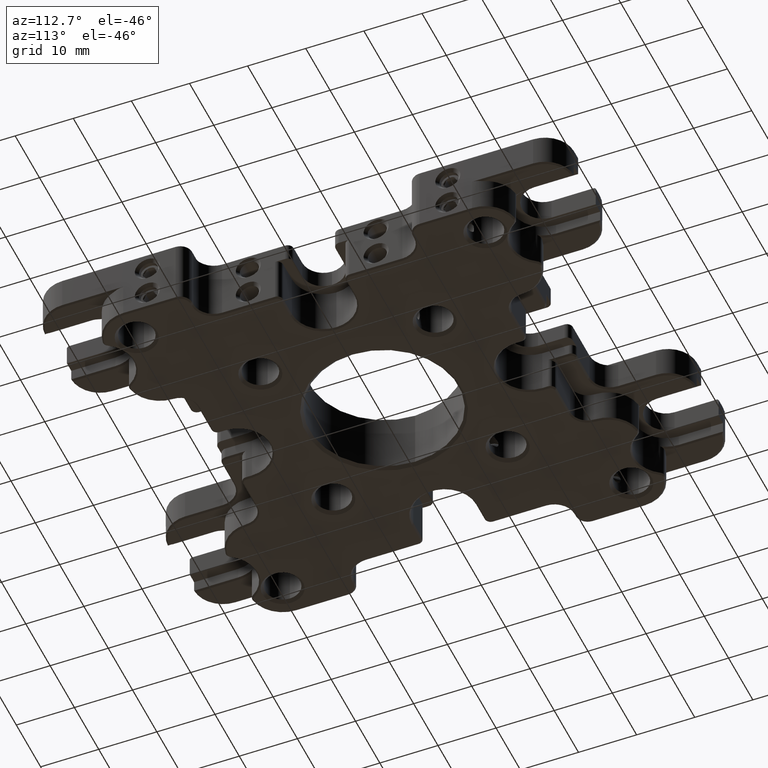
[diagram: clean part render]
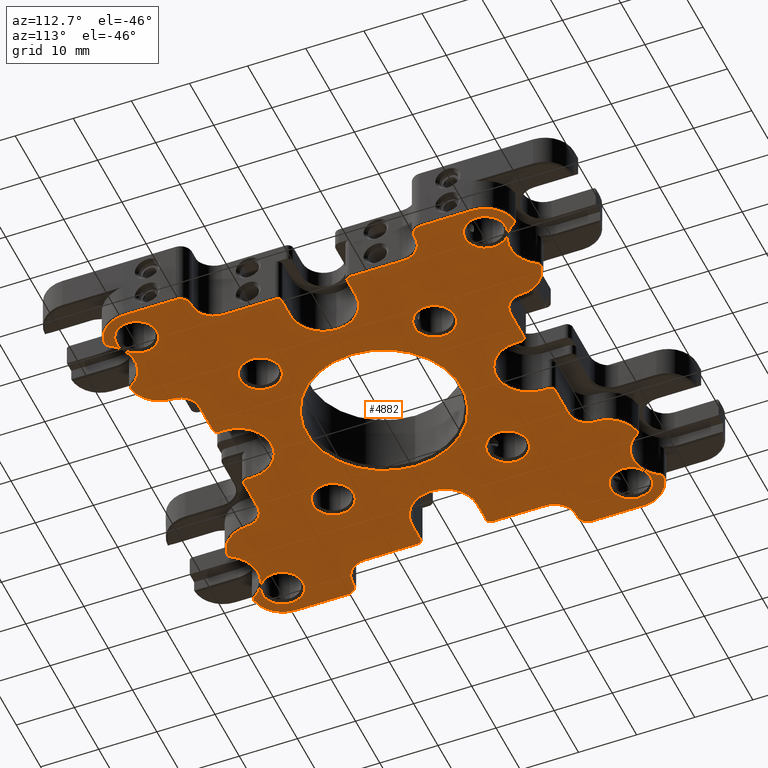
[diagram: same view with one face highlighted and labeled with its STEP entity id]
A machine part, auxiliary view. The second image highlights one B-rep face of the part: STEP entity #4882.
In plain terms, the highlighted planar face has unit normal (-0, -0, -1).
Its self-contained STEP definition (entity closure, byte-faithful):
#3 = VERTEX_POINT ( 'NONE', #20423 ) ;
#20 = VERTEX_POINT ( 'NONE', #4697 ) ;
#23 = AXIS2_PLACEMENT_3D ( 'NONE', #18444, #396, #20587 ) ;
#34 = AXIS2_PLACEMENT_3D ( 'NONE', #23027, #22929, #9438 ) ;
#136 = VERTEX_POINT ( 'NONE', #25530 ) ;
#164 = CIRCLE ( 'NONE', #18399, 3.249999999999996003 ) ;
#219 = EDGE_CURVE ( 'NONE', #1838, #3, #7677, .T. ) ;
#292 = CARTESIAN_POINT ( 'NONE',  ( -20.55000000000000071, 30.00000000000000711, -6.000000000000002665 ) ) ;
#361 = CARTESIAN_POINT ( 'NONE',  ( 5.650000000000093614, -24.99999999999998934, -5.999999999999997335 ) ) ;
#396 = DIRECTION ( 'NONE',  ( -5.551115123125782702E-17, -1.224646799147352468E-16, -1.000000000000000000 ) ) ;
#434 = DIRECTION ( 'NONE',  ( 5.551115123125782702E-17, 1.224646799147352468E-16, 1.000000000000000000 ) ) ;
#440 = VERTEX_POINT ( 'NONE', #10700 ) ;
#466 = AXIS2_PLACEMENT_3D ( 'NONE', #24731, #16068, #18148 ) ;
#515 = ORIENTED_EDGE ( 'NONE', *, *, #9703, .T. ) ;
#548 = DIRECTION ( 'NONE',  ( -1.000000000000000000, 7.225669484457239018E-33, 6.508304479540797116E-17 ) ) ;
#760 = ORIENTED_EDGE ( 'NONE', *, *, #19012, .T. ) ;
#769 = ORIENTED_EDGE ( 'NONE', *, *, #14913, .T. ) ;
#768 = DIRECTION ( 'NONE',  ( -1.000000000000000000, 0.000000000000000000, 0.000000000000000000 ) ) ;
#822 = EDGE_CURVE ( 'NONE', #18697, #23157, #16100, .T. ) ;
#942 = ORIENTED_EDGE ( 'NONE', *, *, #21608, .T. ) ;
#1018 = FACE_BOUND ( 'NONE', #5907, .T. ) ;
#1022 = VECTOR ( 'NONE', #17474, 1000.000000000000000 ) ;
#1025 = CIRCLE ( 'NONE', #12458, 3.500000000000031086 ) ;
#1058 = EDGE_CURVE ( 'NONE', #28078, #18950, #20307, .T. ) ;
#1156 = EDGE_CURVE ( 'NONE', #14185, #15510, #13974, .T. ) ;
#1162 = ORIENTED_EDGE ( 'NONE', *, *, #17979, .T. ) ;
#1168 = CARTESIAN_POINT ( 'NONE',  ( -15.00000000000000355, -15.00000000000000355, -5.999999999999997335 ) ) ;
#1207 = VECTOR ( 'NONE', #7180, 1000.000000000000000 ) ;
#1224 = ORIENTED_EDGE ( 'NONE', *, *, #11934, .T. ) ;
#1276 = EDGE_CURVE ( 'NONE', #9446, #14348, #3404, .T. ) ;
#1303 = LINE ( 'NONE', #20091, #12812 ) ;
#1309 = VERTEX_POINT ( 'NONE', #17637 ) ;
#1321 = CARTESIAN_POINT ( 'NONE',  ( -30.00000000000000711, -30.00000000000000711, -5.999999999999994671 ) ) ;
#1329 = DIRECTION ( 'NONE',  ( -1.000000000000000000, 0.000000000000000000, 0.000000000000000000 ) ) ;
#1334 = EDGE_CURVE ( 'NONE', #18144, #24481, #1659, .T. ) ;
#1342 = VECTOR ( 'NONE', #2926, 1000.000000000000000 ) ;
#1422 = EDGE_CURVE ( 'NONE', #10938, #14876, #26902, .T. ) ;
#1507 = ORIENTED_EDGE ( 'NONE', *, *, #16801, .T. ) ;
#1515 = ORIENTED_EDGE ( 'NONE', *, *, #9013, .T. ) ;
#1531 = VERTEX_POINT ( 'NONE', #24027 ) ;
#1530 = AXIS2_PLACEMENT_3D ( 'NONE', #16960, #10651, #26554 ) ;
#1563 = CARTESIAN_POINT ( 'NONE',  ( 30.68930778738513965, -34.49748315997405967, -5.999999999999997335 ) ) ;
#1601 = DIRECTION ( 'NONE',  ( -1.000000000000000000, 0.000000000000000000, 0.000000000000000000 ) ) ;
#1659 = CIRCLE ( 'NONE', #8578, 0.7500000000000006661 ) ;
#1696 = EDGE_CURVE ( 'NONE', #7974, #12941, #19743, .T. ) ;
#1726 = VERTEX_POINT ( 'NONE', #18580 ) ;
#1731 = CIRCLE ( 'NONE', #25037, 0.7500000000000006661 ) ;
#1788 = DIRECTION ( 'NONE',  ( -5.551115123125782702E-17, -1.224646799147352468E-16, -1.000000000000000000 ) ) ;
#1838 = VERTEX_POINT ( 'NONE', #17288 ) ;
#1853 = CARTESIAN_POINT ( 'NONE',  ( -33.05000000000003268, -19.25000000000000000, -5.999999999999995559 ) ) ;
#1870 = ORIENTED_EDGE ( 'NONE', *, *, #4716, .T. ) ;
#1929 = ORIENTED_EDGE ( 'NONE', *, *, #1334, .T. ) ;
#1951 = ORIENTED_EDGE ( 'NONE', *, *, #9628, .T. ) ;
#1980 = ORIENTED_EDGE ( 'NONE', *, *, #28832, .T. ) ;
#1991 = DIRECTION ( 'NONE',  ( -1.000000000000000000, 0.000000000000000000, 0.000000000000000000 ) ) ;
#2009 = CARTESIAN_POINT ( 'NONE',  ( 8.707643124360554731E-14, -25.00000000000000711, -5.999999999999996447 ) ) ;
#2011 = DIRECTION ( 'NONE',  ( 5.551115123125782702E-17, 1.224646799147352468E-16, 1.000000000000000000 ) ) ;
#2016 = ORIENTED_EDGE ( 'NONE', *, *, #24551, .T. ) ;
#2144 = AXIS2_PLACEMENT_3D ( 'NONE', #23367, #9866, #25561 ) ;
#2145 = CIRCLE ( 'NONE', #9078, 13.32700000000002305 ) ;
#2158 = VERTEX_POINT ( 'NONE', #18597 ) ;
#2274 = CARTESIAN_POINT ( 'NONE',  ( -30.00000000000000711, -30.00000000000000711, -5.999999999999994671 ) ) ;
#2294 = ORIENTED_EDGE ( 'NONE', *, *, #17757, .T. ) ;
#2315 = ORIENTED_EDGE ( 'NONE', *, *, #14815, .T. ) ;
#2318 = ORIENTED_EDGE ( 'NONE', *, *, #219, .T. ) ;
#2352 = DIRECTION ( 'NONE',  ( -5.551115123125782702E-17, -1.224646799147352468E-16, -1.000000000000000000 ) ) ;
#2393 = CIRCLE ( 'NONE', #19068, 5.650000000000002132 ) ;
#2446 = VERTEX_POINT ( 'NONE', #5406 ) ;
#2459 = EDGE_CURVE ( 'NONE', #19408, #14001, #7168, .T. ) ;
#2489 = LINE ( 'NONE', #26253, #22849 ) ;
#2519 = DIRECTION ( 'NONE',  ( -1.000000000000000000, 0.000000000000000000, 0.000000000000000000 ) ) ;
#2595 = CARTESIAN_POINT ( 'NONE',  ( 25.00000000000000711, -5.650000000000003908, -6.000000000000000888 ) ) ;
#2609 = DIRECTION ( 'NONE',  ( 5.551115123125782702E-17, 1.224646799147352468E-16, 1.000000000000000000 ) ) ;
#2612 = CARTESIAN_POINT ( 'NONE',  ( -30.80292995014093194, -35.23882653799176268, -5.999999999999993783 ) ) ;
#2626 = ORIENTED_EDGE ( 'NONE', *, *, #14204, .T. ) ;
#2681 = CARTESIAN_POINT ( 'NONE',  ( 26.49999999999997513, 30.00000000000000711, -6.000000000000005329 ) ) ;
#2709 = EDGE_CURVE ( 'NONE', #7566, #4701, #1303, .T. ) ;
#2818 = AXIS2_PLACEMENT_3D ( 'NONE', #10362, #3836, #14629 ) ;
#2877 = CARTESIAN_POINT ( 'NONE',  ( 19.86069221261486462, -34.49748315997406678, -5.999999999999996447 ) ) ;
#2885 = AXIS2_PLACEMENT_3D ( 'NONE', #6793, #2352, #4481 ) ;
#2893 = ORIENTED_EDGE ( 'NONE', *, *, #21449, .T. ) ;
#2905 = VERTEX_POINT ( 'NONE', #20206 ) ;
#2926 = DIRECTION ( 'NONE',  ( -4.149196400824861668E-15, 1.000000000000000000, -1.224646799147350742E-16 ) ) ;
#2951 = CIRCLE ( 'NONE', #23921, 3.500000000000031086 ) ;
#2975 = AXIS2_PLACEMENT_3D ( 'NONE', #10987, #4285, #8946 ) ;
#2976 = DIRECTION ( 'NONE',  ( -1.000000000000000000, 0.000000000000000000, 0.000000000000000000 ) ) ;
#3035 = EDGE_CURVE ( 'NONE', #26355, #17253, #19137, .T. ) ;
#3036 = CIRCLE ( 'NONE', #20481, 1.750000000000001554 ) ;
#3132 = DIRECTION ( 'NONE',  ( -1.000000000000000000, 0.000000000000000000, 0.000000000000000000 ) ) ;
#3205 = ORIENTED_EDGE ( 'NONE', *, *, #5536, .T. ) ;
#3237 = ORIENTED_EDGE ( 'NONE', *, *, #14705, .T. ) ;
#3314 = DIRECTION ( 'NONE',  ( -5.551115123125782702E-17, -1.224646799147352468E-16, -1.000000000000000000 ) ) ;
#3404 = CIRCLE ( 'NONE', #27198, 13.32700000000002305 ) ;
#3536 = EDGE_CURVE ( 'NONE', #21972, #9353, #22210, .T. ) ;
#3555 = CARTESIAN_POINT ( 'NONE',  ( 33.50000000000003553, -30.00000000000000711, -5.999999999999998224 ) ) ;
#3719 = CARTESIAN_POINT ( 'NONE',  ( -28.55000000000002558, -5.650000000000003908, -5.999999999999997335 ) ) ;
#3765 = CARTESIAN_POINT ( 'NONE',  ( 25.00000000000000711, -8.572527594031471218E-16, -6.000000000000001776 ) ) ;
#3779 = FACE_BOUND ( 'NONE', #12794, .T. ) ;
#3836 = DIRECTION ( 'NONE',  ( 5.551115123125782702E-17, 1.224646799147352468E-16, 1.000000000000000000 ) ) ;
#3845 = AXIS2_PLACEMENT_3D ( 'NONE', #19868, #17339, #21923 ) ;
#3846 = CARTESIAN_POINT ( 'NONE',  ( -33.05000000000003268, 15.50000000000000533, -6.000000000000000000 ) ) ;
#3856 = EDGE_CURVE ( 'NONE', #14326, #10458, #27851, .T. ) ;
#3917 = CIRCLE ( 'NONE', #12172, 3.500000000000031086 ) ;
#3918 = EDGE_CURVE ( 'NONE', #16077, #6807, #28766, .T. ) ;
#3945 = DIRECTION ( 'NONE',  ( -1.000000000000000000, 0.000000000000000000, 0.000000000000000000 ) ) ;
#4045 = AXIS2_PLACEMENT_3D ( 'NONE', #11088, #9239, #13605 ) ;
#4161 = CARTESIAN_POINT ( 'NONE',  ( -3.330669073875469621E-16, -7.347880794884114806E-16, -6.000000000000000000 ) ) ;
#4237 = CARTESIAN_POINT ( 'NONE',  ( -30.05481859355094088, -34.89738747716459955, -5.999999999999993783 ) ) ;
#4248 = CARTESIAN_POINT ( 'NONE',  ( 6.399999999999917755, 26.75000000000001066, -6.000000000000003553 ) ) ;
#4249 = DIRECTION ( 'NONE',  ( -1.000000000000000000, 0.000000000000000000, 0.000000000000000000 ) ) ;
#4285 = DIRECTION ( 'NONE',  ( -5.551115123125782702E-17, -1.224646799147352468E-16, -1.000000000000000000 ) ) ;
#4296 = AXIS2_PLACEMENT_3D ( 'NONE', #9280, #13856, #16224 ) ;
#4302 = VERTEX_POINT ( 'NONE', #22342 ) ;
#4326 = CIRCLE ( 'NONE', #11745, 3.750000000000027534 ) ;
#4365 = DIRECTION ( 'NONE',  ( -1.000000000000000000, 0.000000000000000000, 0.000000000000000000 ) ) ;
#4399 = DIRECTION ( 'NONE',  ( -1.785374792092216501E-32, 1.000000000000000000, -1.224646799147352961E-16 ) ) ;
#4481 = DIRECTION ( 'NONE',  ( -1.000000000000000000, 0.000000000000000000, 0.000000000000000000 ) ) ;
#4491 = CIRCLE ( 'NONE', #21507, 5.300000000000002487 ) ;
#4606 = VERTEX_POINT ( 'NONE', #5229 ) ;
#4670 = CARTESIAN_POINT ( 'NONE',  ( 35.30000000000000426, 21.00000000000000000, -6.000000000000004441 ) ) ;
#4676 = EDGE_CURVE ( 'NONE', #26410, #10510, #14367, .T. ) ;
#4697 = CARTESIAN_POINT ( 'NONE',  ( -20.49518140644906694, -34.89738747716459955, -5.999999999999994671 ) ) ;
#4701 = VERTEX_POINT ( 'NONE', #6206 ) ;
#4716 = EDGE_CURVE ( 'NONE', #14872, #2446, #24850, .T. ) ;
#4736 = VERTEX_POINT ( 'NONE', #17564 ) ;
#4738 = CARTESIAN_POINT ( 'NONE',  ( -18.50000000000003553, -15.00000000000000355, -5.999999999999997335 ) ) ;
#4823 = ORIENTED_EDGE ( 'NONE', *, *, #18371, .T. ) ;
#4851 = DIRECTION ( 'NONE',  ( -1.000000000000000000, 0.000000000000000000, 0.000000000000000000 ) ) ;
#4869 = DIRECTION ( 'NONE',  ( -5.551115123125782702E-17, -1.224646799147352468E-16, -1.000000000000000000 ) ) ;
#4882 = ADVANCED_FACE ( 'NONE', ( #7606, #12900, #1018, #13603, #20323, #13639, #5869, #14996, #20291, #3779 ), #24521, .T. ) ;
#4891 = VECTOR ( 'NONE', #25161, 1000.000000000000000 ) ;
#4894 = DIRECTION ( 'NONE',  ( 5.551115123125782702E-17, 1.224646799147352468E-16, 1.000000000000000000 ) ) ;
#4909 = LINE ( 'NONE', #25393, #23859 ) ;
#4963 = CIRCLE ( 'NONE', #19571, 0.7500000000000041078 ) ;
#5152 = EDGE_LOOP ( 'NONE', ( #2016, #19679 ) ) ;
#5179 = LINE ( 'NONE', #5505, #13990 ) ;
#5181 = CARTESIAN_POINT ( 'NONE',  ( -33.55000000000000426, 19.25000000000000000, -6.000000000000000888 ) ) ;
#5188 = AXIS2_PLACEMENT_3D ( 'NONE', #1168, #10321, #5638 ) ;
#5229 = CARTESIAN_POINT ( 'NONE',  ( 26.49999999999997513, -30.00000000000000711, -5.999999999999998224 ) ) ;
#5248 = DIRECTION ( 'NONE',  ( -1.000000000000000000, 0.000000000000000000, 0.000000000000000000 ) ) ;
#5299 = EDGE_LOOP ( 'NONE', ( #20978, #29025 ) ) ;
#5339 = EDGE_CURVE ( 'NONE', #12941, #6435, #27872, .T. ) ;
#5374 = CARTESIAN_POINT ( 'NONE',  ( 19.86069221261486817, 34.49748315997405967, -6.000000000000005329 ) ) ;
#5376 = ORIENTED_EDGE ( 'NONE', *, *, #19617, .T. ) ;
#5387 = LINE ( 'NONE', #22479, #18780 ) ;
#5406 = CARTESIAN_POINT ( 'NONE',  ( 29.30000000000003268, 15.50000000000000533, -6.000000000000003553 ) ) ;
#5505 = CARTESIAN_POINT ( 'NONE',  ( -35.30000000000001847, -21.00000000000000000, -5.999999999999995559 ) ) ;
#5536 = EDGE_CURVE ( 'NONE', #18168, #8852, #5179, .T. ) ;
#5544 = DIRECTION ( 'NONE',  ( -1.000000000000000000, 0.000000000000000000, 0.000000000000000000 ) ) ;
#5638 = DIRECTION ( 'NONE',  ( -1.000000000000000000, 0.000000000000000000, 0.000000000000000000 ) ) ;
#5697 = DIRECTION ( 'NONE',  ( -1.000000000000000000, 0.000000000000000000, 0.000000000000000000 ) ) ;
#5705 = CARTESIAN_POINT ( 'NONE',  ( 33.55000000000000426, 19.25000000000000000, -6.000000000000004441 ) ) ;
#5724 = AXIS2_PLACEMENT_3D ( 'NONE', #14622, #15212, #8174 ) ;
#5768 = DIRECTION ( 'NONE',  ( -1.000000000000000000, 0.000000000000000000, 0.000000000000000000 ) ) ;
#5785 = CARTESIAN_POINT ( 'NONE',  ( -5.650000000000103384, 24.99999999999998934, -6.000000000000002665 ) ) ;
#5869 = FACE_BOUND ( 'NONE', #5152, .T. ) ;
#5907 = EDGE_LOOP ( 'NONE', ( #20858, #10470 ) ) ;
#5922 = EDGE_CURVE ( 'NONE', #10737, #18144, #11016, .T. ) ;
#5924 = CARTESIAN_POINT ( 'NONE',  ( 11.99999999999999289, -26.75000000000000355, -5.999999999999997335 ) ) ;
#5943 = ORIENTED_EDGE ( 'NONE', *, *, #8154, .T. ) ;
#5979 = CARTESIAN_POINT ( 'NONE',  ( -33.55000000000001847, -21.00000000000000000, -5.999999999999995559 ) ) ;
#5983 = DIRECTION ( 'NONE',  ( -5.551115123125782702E-17, -1.224646799147352468E-16, -1.000000000000000000 ) ) ;
#6015 = ORIENTED_EDGE ( 'NONE', *, *, #10854, .T. ) ;
#6059 = VERTEX_POINT ( 'NONE', #14931 ) ;
#6069 = DIRECTION ( 'NONE',  ( -1.000000000000000000, 5.782411586589357639E-16, 5.551115123125775923E-17 ) ) ;
#6083 = DIRECTION ( 'NONE',  ( -5.551115123125782702E-17, -1.224646799147352468E-16, -1.000000000000000000 ) ) ;
#6106 = CARTESIAN_POINT ( 'NONE',  ( 35.30000000000000426, 21.00000000000000000, -6.000000000000004441 ) ) ;
#6149 = CARTESIAN_POINT ( 'NONE',  ( -19.74707004985907588, 35.23882653799176268, -6.000000000000003553 ) ) ;
#6161 = EDGE_CURVE ( 'NONE', #16924, #12620, #7778, .T. ) ;
#6206 = CARTESIAN_POINT ( 'NONE',  ( 6.400000000000099831, -26.75000000000000355, -5.999999999999997335 ) ) ;
#6250 = EDGE_CURVE ( 'NONE', #14876, #2158, #18603, .T. ) ;
#6270 = CARTESIAN_POINT ( 'NONE',  ( -12.00000000000000000, 30.00000000000000711, -6.000000000000002665 ) ) ;
#6271 = DIRECTION ( 'NONE',  ( -1.000000000000000000, -6.577150619817271297E-16, 5.551115123125791330E-17 ) ) ;
#6346 = DIRECTION ( 'NONE',  ( -1.000000000000000000, 0.000000000000000000, 0.000000000000000000 ) ) ;
#6414 = CARTESIAN_POINT ( 'NONE',  ( 25.00000000000000711, 5.650000000000004796, -6.000000000000001776 ) ) ;
#6435 = VERTEX_POINT ( 'NONE', #19005 ) ;
#6469 = LINE ( 'NONE', #20871, #16359 ) ;
#6490 = CARTESIAN_POINT ( 'NONE',  ( 13.32700000000002305, 8.972987097352687740E-16, -6.000000000000000888 ) ) ;
#6548 = AXIS2_PLACEMENT_3D ( 'NONE', #1321, #21596, #19469 ) ;
#6586 = DIRECTION ( 'NONE',  ( -1.000000000000000000, 6.577150619817271297E-16, 5.551115123125774690E-17 ) ) ;
#6606 = DIRECTION ( 'NONE',  ( -1.000000000000000000, 0.000000000000000000, 0.000000000000000000 ) ) ;
#6770 = VERTEX_POINT ( 'NONE', #5785 ) ;
#6786 = EDGE_CURVE ( 'NONE', #16862, #1726, #28780, .T. ) ;
#6791 = EDGE_CURVE ( 'NONE', #18958, #18168, #17655, .T. ) ;
#6793 = CARTESIAN_POINT ( 'NONE',  ( -30.68930778738513965, 34.49748315997405967, -6.000000000000002665 ) ) ;
#6807 = VERTEX_POINT ( 'NONE', #28205 ) ;
#6883 = VERTEX_POINT ( 'NONE', #19164 ) ;
#6941 = DIRECTION ( 'NONE',  ( -1.000000000000000000, 0.000000000000000000, 0.000000000000000000 ) ) ;
#6944 = EDGE_CURVE ( 'NONE', #9825, #1531, #28313, .T. ) ;
#6947 = VERTEX_POINT ( 'NONE', #26016 ) ;
#7001 = CARTESIAN_POINT ( 'NONE',  ( 30.00000000000000711, -30.00000000000000711, -5.999999999999998224 ) ) ;
#7060 = ORIENTED_EDGE ( 'NONE', *, *, #13276, .T. ) ;
#7145 = EDGE_CURVE ( 'NONE', #20374, #9825, #20957, .T. ) ;
#7168 = LINE ( 'NONE', #21122, #19881 ) ;
#7180 = DIRECTION ( 'NONE',  ( 2.833766276861406226E-15, -1.000000000000000000, 1.224646799147351482E-16 ) ) ;
#7287 = ORIENTED_EDGE ( 'NONE', *, *, #5339, .T. ) ;
#7288 = CARTESIAN_POINT ( 'NONE',  ( 5.649999999999914202, 26.00000000000000355, -6.000000000000003553 ) ) ;
#7340 = DIRECTION ( 'NONE',  ( 5.551115123125782702E-17, 1.224646799147352468E-16, 1.000000000000000000 ) ) ;
#7566 = VERTEX_POINT ( 'NONE', #5924 ) ;
#7606 = FACE_OUTER_BOUND ( 'NONE', #22980, .T. ) ;
#7677 = CIRCLE ( 'NONE', #26986, 5.300000000000002487 ) ;
#7689 = CIRCLE ( 'NONE', #3845, 3.500000000000031086 ) ;
#7778 = CIRCLE ( 'NONE', #2975, 5.299999999999998934 ) ;
#7799 = ORIENTED_EDGE ( 'NONE', *, *, #13437, .T. ) ;
#7810 = CARTESIAN_POINT ( 'NONE',  ( 28.55000000000002558, -6.400000000000007461, -6.000000000000000888 ) ) ;
#7905 = CARTESIAN_POINT ( 'NONE',  ( -33.05000000000003268, -15.50000000000000533, -5.999999999999996447 ) ) ;
#7937 = VERTEX_POINT ( 'NONE', #11220 ) ;
#7974 = VERTEX_POINT ( 'NONE', #27492 ) ;
#7979 = CARTESIAN_POINT ( 'NONE',  ( -35.30000000000001847, -21.00000000000000000, -5.999999999999995559 ) ) ;
#8010 = CIRCLE ( 'NONE', #34, 3.500000000000031086 ) ;
#8046 = ORIENTED_EDGE ( 'NONE', *, *, #2459, .T. ) ;
#8047 = EDGE_CURVE ( 'NONE', #20095, #18958, #22182, .T. ) ;
#8049 = CIRCLE ( 'NONE', #24964, 0.7500000000000041078 ) ;
#8090 = AXIS2_PLACEMENT_3D ( 'NONE', #11742, #7340, #16449 ) ;
#8091 = DIRECTION ( 'NONE',  ( -5.551115123125782702E-17, -1.224646799147352468E-16, -1.000000000000000000 ) ) ;
#8154 = EDGE_CURVE ( 'NONE', #16155, #1838, #15468, .T. ) ;
#8157 = CARTESIAN_POINT ( 'NONE',  ( 20.49518140644906694, 34.89738747716459955, -6.000000000000005329 ) ) ;
#8159 = DIRECTION ( 'NONE',  ( 5.551115123125782702E-17, 1.224646799147352468E-16, 1.000000000000000000 ) ) ;
#8165 = CIRCLE ( 'NONE', #11084, 3.500000000000031086 ) ;
#8174 = DIRECTION ( 'NONE',  ( -1.000000000000000000, 0.000000000000000000, 0.000000000000000000 ) ) ;
#8202 = AXIS2_PLACEMENT_3D ( 'NONE', #292, #15987, #2519 ) ;
#8213 = CIRCLE ( 'NONE', #2144, 3.249999999999996003 ) ;
#8215 = DIRECTION ( 'NONE',  ( -1.000000000000000000, 0.000000000000000000, 0.000000000000000000 ) ) ;
#8216 = DIRECTION ( 'NONE',  ( 5.551115123125782702E-17, 1.224646799147352468E-16, 1.000000000000000000 ) ) ;
#8306 = VERTEX_POINT ( 'NONE', #8157 ) ;
#8330 = EDGE_CURVE ( 'NONE', #15510, #13453, #1731, .T. ) ;
#8350 = DIRECTION ( 'NONE',  ( 5.551115123125782702E-17, 1.224646799147352468E-16, 1.000000000000000000 ) ) ;
#8394 = CARTESIAN_POINT ( 'NONE',  ( 19.74707004985907588, 35.23882653799176268, -6.000000000000005329 ) ) ;
#8484 = CARTESIAN_POINT ( 'NONE',  ( 33.05000000000003268, 19.25000000000000000, -6.000000000000004441 ) ) ;
#8501 = EDGE_CURVE ( 'NONE', #6807, #20002, #4491, .T. ) ;
#8503 = CARTESIAN_POINT ( 'NONE',  ( -25.00000000000000711, -5.650000000000003908, -5.999999999999998224 ) ) ;
#8507 = EDGE_CURVE ( 'NONE', #1531, #19408, #29024, .T. ) ;
#8578 = AXIS2_PLACEMENT_3D ( 'NONE', #28815, #15449, #4249 ) ;
#8743 = VECTOR ( 'NONE', #13662, 1000.000000000000000 ) ;
#8775 = DIRECTION ( 'NONE',  ( -5.551115123125782702E-17, -1.224646799147352468E-16, -1.000000000000000000 ) ) ;
#8847 = VERTEX_POINT ( 'NONE', #10159 ) ;
#8852 = VERTEX_POINT ( 'NONE', #7979 ) ;
#8858 = ORIENTED_EDGE ( 'NONE', *, *, #4676, .T. ) ;
#8860 = EDGE_CURVE ( 'NONE', #8893, #26772, #11394, .T. ) ;
#8893 = VERTEX_POINT ( 'NONE', #12811 ) ;
#8946 = DIRECTION ( 'NONE',  ( -1.000000000000000000, 0.000000000000000000, 0.000000000000000000 ) ) ;
#8969 = DIRECTION ( 'NONE',  ( -1.000000000000000000, 0.000000000000000000, 0.000000000000000000 ) ) ;
#9009 = DIRECTION ( 'NONE',  ( 5.551115123125782702E-17, 1.224646799147352468E-16, 1.000000000000000000 ) ) ;
#9013 = EDGE_CURVE ( 'NONE', #6059, #6883, #9306, .T. ) ;
#9078 = AXIS2_PLACEMENT_3D ( 'NONE', #25172, #13961, #548 ) ;
#9239 = DIRECTION ( 'NONE',  ( 5.551115123125782702E-17, 1.224646799147352468E-16, 1.000000000000000000 ) ) ;
#9277 = CARTESIAN_POINT ( 'NONE',  ( 28.55000000000002558, 5.650000000000002132, -6.000000000000002665 ) ) ;
#9278 = DIRECTION ( 'NONE',  ( -1.000000000000000000, 0.000000000000000000, 0.000000000000000000 ) ) ;
#9280 = CARTESIAN_POINT ( 'NONE',  ( -6.400000000000099831, 26.00000000000000711, -6.000000000000002665 ) ) ;
#9306 = CIRCLE ( 'NONE', #25072, 3.500000000000031086 ) ;
#9331 = AXIS2_PLACEMENT_3D ( 'NONE', #22321, #11040, #20166 ) ;
#9353 = VERTEX_POINT ( 'NONE', #28154 ) ;
#9438 = DIRECTION ( 'NONE',  ( -1.000000000000000000, 0.000000000000000000, 0.000000000000000000 ) ) ;
#9446 = VERTEX_POINT ( 'NONE', #6490 ) ;
#9461 = CARTESIAN_POINT ( 'NONE',  ( 35.30000000000000426, 30.00000000000000711, -6.000000000000005329 ) ) ;
#9478 = CARTESIAN_POINT ( 'NONE',  ( 25.27500000000000568, -37.91000000000001080, -5.999999999999996447 ) ) ;
#9552 = CARTESIAN_POINT ( 'NONE',  ( 33.54999999999999716, -21.00000000000000000, -5.999999999999999112 ) ) ;
#9605 = VERTEX_POINT ( 'NONE', #19255 ) ;
#9628 = EDGE_CURVE ( 'NONE', #2446, #2905, #19878, .T. ) ;
#9633 = CARTESIAN_POINT ( 'NONE',  ( -20.49518140644906694, 34.89738747716459955, -6.000000000000003553 ) ) ;
#9703 = EDGE_CURVE ( 'NONE', #9605, #10938, #11370, .T. ) ;
#9731 = CARTESIAN_POINT ( 'NONE',  ( -30.00000000000000711, 30.00000000000000711, -6.000000000000001776 ) ) ;
#9749 = CARTESIAN_POINT ( 'NONE',  ( 30.80292995014093194, 35.23882653799176268, -6.000000000000006217 ) ) ;
#9825 = VERTEX_POINT ( 'NONE', #13224 ) ;
#9866 = DIRECTION ( 'NONE',  ( 5.551115123125782702E-17, 1.224646799147352468E-16, 1.000000000000000000 ) ) ;
#9878 = ORIENTED_EDGE ( 'NONE', *, *, #2709, .T. ) ;
#9903 = AXIS2_PLACEMENT_3D ( 'NONE', #15222, #1788, #19952 ) ;
#9910 = DIRECTION ( 'NONE',  ( 5.551115123125782702E-17, 1.224646799147352468E-16, 1.000000000000000000 ) ) ;
#9913 = ORIENTED_EDGE ( 'NONE', *, *, #18080, .T. ) ;
#10027 = DIRECTION ( 'NONE',  ( -2.833766276861406226E-15, 1.000000000000000000, -1.224646799147351482E-16 ) ) ;
#10053 = CIRCLE ( 'NONE', #2885, 0.7500000000000041078 ) ;
#10099 = CARTESIAN_POINT ( 'NONE',  ( -33.05000000000003268, -19.25000000000000000, -5.999999999999995559 ) ) ;
#10126 = CARTESIAN_POINT ( 'NONE',  ( 30.00000000000000711, -30.00000000000000711, -5.999999999999998224 ) ) ;
#10159 = CARTESIAN_POINT ( 'NONE',  ( -33.50000000000003553, -30.00000000000000711, -5.999999999999994671 ) ) ;
#10321 = DIRECTION ( 'NONE',  ( 5.551115123125782702E-17, 1.224646799147352468E-16, 1.000000000000000000 ) ) ;
#10340 = VECTOR ( 'NONE', #16845, 1000.000000000000000 ) ;
#10362 = CARTESIAN_POINT ( 'NONE',  ( 25.27500000000000568, 37.91000000000001080, -6.000000000000006217 ) ) ;
#10427 = DIRECTION ( 'NONE',  ( -1.000000000000000000, 0.000000000000000000, 0.000000000000000000 ) ) ;
#10458 = VERTEX_POINT ( 'NONE', #2681 ) ;
#10470 = ORIENTED_EDGE ( 'NONE', *, *, #3035, .T. ) ;
#10510 = VERTEX_POINT ( 'NONE', #4738 ) ;
#10574 = DIRECTION ( 'NONE',  ( 5.551115123125782702E-17, 1.224646799147352468E-16, 1.000000000000000000 ) ) ;
#10651 = DIRECTION ( 'NONE',  ( -5.551115123125782702E-17, -1.224646799147352468E-16, -1.000000000000000000 ) ) ;
#10685 = EDGE_CURVE ( 'NONE', #10510, #26410, #8165, .T. ) ;
#10700 = CARTESIAN_POINT ( 'NONE',  ( 33.05000000000003268, -19.25000000000003197, -5.999999999999999112 ) ) ;
#10737 = VERTEX_POINT ( 'NONE', #24665 ) ;
#10757 = DIRECTION ( 'NONE',  ( -1.000000000000000000, 0.000000000000000000, 0.000000000000000000 ) ) ;
#10797 = ORIENTED_EDGE ( 'NONE', *, *, #24641, .T. ) ;
#10841 = DIRECTION ( 'NONE',  ( -1.000000000000000000, 4.622231866529366047E-33, 5.551115123125782702E-17 ) ) ;
#10854 = EDGE_CURVE ( 'NONE', #27970, #6770, #19114, .T. ) ;
#10938 = VERTEX_POINT ( 'NONE', #9633 ) ;
#10987 = CARTESIAN_POINT ( 'NONE',  ( 30.00000000000000711, 30.00000000000000711, -6.000000000000005329 ) ) ;
#11016 = LINE ( 'NONE', #21225, #10340 ) ;
#11040 = DIRECTION ( 'NONE',  ( -5.551115123125782702E-17, -1.224646799147352468E-16, -1.000000000000000000 ) ) ;
#11084 = AXIS2_PLACEMENT_3D ( 'NONE', #17097, #17478, #12704 ) ;
#11088 = CARTESIAN_POINT ( 'NONE',  ( 30.00000000000000711, 30.00000000000000711, -6.000000000000005329 ) ) ;
#11105 = ORIENTED_EDGE ( 'NONE', *, *, #16087, .T. ) ;
#11119 = CARTESIAN_POINT ( 'NONE',  ( -29.30000000000002913, 15.50000000000000533, -6.000000000000000000 ) ) ;
#11220 = CARTESIAN_POINT ( 'NONE',  ( -15.25000000000000711, -30.00000000000000711, -5.999999999999995559 ) ) ;
#11261 = VECTOR ( 'NONE', #10027, 1000.000000000000000 ) ;
#11370 = CIRCLE ( 'NONE', #24616, 5.650000000000002132 ) ;
#11371 = AXIS2_PLACEMENT_3D ( 'NONE', #16729, #28096, #12519 ) ;
#11394 = CIRCLE ( 'NONE', #5724, 3.500000000000031086 ) ;
#11430 = ORIENTED_EDGE ( 'NONE', *, *, #18392, .T. ) ;
#11438 = CARTESIAN_POINT ( 'NONE',  ( 35.29999999999999716, -21.00000000000000000, -5.999999999999999112 ) ) ;
#11444 = AXIS2_PLACEMENT_3D ( 'NONE', #3846, #15121, #1991 ) ;
#11465 = ORIENTED_EDGE ( 'NONE', *, *, #27380, .T. ) ;
#11548 = ORIENTED_EDGE ( 'NONE', *, *, #12788, .T. ) ;
#11555 = DIRECTION ( 'NONE',  ( -5.551115123125782702E-17, -1.224646799147352468E-16, -1.000000000000000000 ) ) ;
#11706 = DIRECTION ( 'NONE',  ( -1.000000000000000000, -1.228122814850836473E-15, 0.000000000000000000 ) ) ;
#11710 = EDGE_CURVE ( 'NONE', #18109, #4606, #7689, .T. ) ;
#11738 = CIRCLE ( 'NONE', #14738, 0.7500000000000041078 ) ;
#11742 = CARTESIAN_POINT ( 'NONE',  ( -8.749763569855117094E-14, 25.00000000000000711, -6.000000000000003553 ) ) ;
#11745 = AXIS2_PLACEMENT_3D ( 'NONE', #27867, #16879, #5544 ) ;
#11798 = DIRECTION ( 'NONE',  ( -1.000000000000000000, 0.000000000000000000, 0.000000000000000000 ) ) ;
#11831 = CARTESIAN_POINT ( 'NONE',  ( 33.54999999999999716, -19.25000000000000000, -5.999999999999999112 ) ) ;
#11891 = EDGE_CURVE ( 'NONE', #27139, #28078, #15818, .T. ) ;
#11923 = CIRCLE ( 'NONE', #17915, 3.500000000000031086 ) ;
#11934 = EDGE_CURVE ( 'NONE', #14348, #9446, #2145, .T. ) ;
#11954 = ORIENTED_EDGE ( 'NONE', *, *, #14315, .T. ) ;
#12073 = ORIENTED_EDGE ( 'NONE', *, *, #1156, .T. ) ;
#12150 = DIRECTION ( 'NONE',  ( -1.000000000000000000, -5.782411586589357639E-16, 5.551115123125790098E-17 ) ) ;
#12159 = AXIS2_PLACEMENT_3D ( 'NONE', #5374, #25070, #22968 ) ;
#12172 = AXIS2_PLACEMENT_3D ( 'NONE', #20812, #4894, #9278 ) ;
#12187 = DIRECTION ( 'NONE',  ( -1.000000000000000000, 0.000000000000000000, 0.000000000000000000 ) ) ;
#12204 = AXIS2_PLACEMENT_3D ( 'NONE', #2009, #24706, #17743 ) ;
#12206 = EDGE_CURVE ( 'NONE', #6883, #6059, #12549, .T. ) ;
#12264 = VECTOR ( 'NONE', #23525, 1000.000000000000000 ) ;
#12282 = ORIENTED_EDGE ( 'NONE', *, *, #10685, .T. ) ;
#12298 = CARTESIAN_POINT ( 'NONE',  ( -13.32700000000002305, -7.347880794884114806E-16, -5.999999999999999112 ) ) ;
#12355 = DIRECTION ( 'NONE',  ( -5.551115123125782702E-17, -1.224646799147352468E-16, -1.000000000000000000 ) ) ;
#12367 = EDGE_CURVE ( 'NONE', #10458, #14326, #1025, .T. ) ;
#12458 = AXIS2_PLACEMENT_3D ( 'NONE', #19636, #15322, #6346 ) ;
#12469 = AXIS2_PLACEMENT_3D ( 'NONE', #15924, #18574, #16115 ) ;
#12519 = DIRECTION ( 'NONE',  ( -1.000000000000000000, 0.000000000000000000, 0.000000000000000000 ) ) ;
#12549 = CIRCLE ( 'NONE', #22682, 3.500000000000031086 ) ;
#12580 = DIRECTION ( 'NONE',  ( -5.551115123125782702E-17, -1.224646799147352468E-16, -1.000000000000000000 ) ) ;
#12589 = ORIENTED_EDGE ( 'NONE', *, *, #27360, .T. ) ;
#12620 = VERTEX_POINT ( 'NONE', #9461 ) ;
#12699 = CARTESIAN_POINT ( 'NONE',  ( -29.30000000000002913, -15.50000000000000533, -5.999999999999996447 ) ) ;
#12704 = DIRECTION ( 'NONE',  ( -1.000000000000000000, 0.000000000000000000, 0.000000000000000000 ) ) ;
#12717 = AXIS2_PLACEMENT_3D ( 'NONE', #9552, #4869, #27481 ) ;
#12788 = EDGE_CURVE ( 'NONE', #3, #7974, #28965, .T. ) ;
#12794 = EDGE_LOOP ( 'NONE', ( #1224, #13030 ) ) ;
#12795 = ORIENTED_EDGE ( 'NONE', *, *, #8507, .T. ) ;
#12800 = CARTESIAN_POINT ( 'NONE',  ( -3.330669073875474552E-16, 26.75000000000001066, -6.000000000000003553 ) ) ;
#12811 = CARTESIAN_POINT ( 'NONE',  ( -33.50000000000003553, 30.00000000000000711, -6.000000000000001776 ) ) ;
#12812 = VECTOR ( 'NONE', #29027, 1000.000000000000000 ) ;
#12828 = ORIENTED_EDGE ( 'NONE', *, *, #1696, .T. ) ;
#12900 = FACE_BOUND ( 'NONE', #23298, .T. ) ;
#12941 = VERTEX_POINT ( 'NONE', #13798 ) ;
#13030 = ORIENTED_EDGE ( 'NONE', *, *, #1276, .T. ) ;
#13197 = DIRECTION ( 'NONE',  ( -1.000000000000000000, 0.000000000000000000, 0.000000000000000000 ) ) ;
#13224 = CARTESIAN_POINT ( 'NONE',  ( 25.00000000000000711, 5.650000000000004796, -6.000000000000001776 ) ) ;
#13276 = EDGE_CURVE ( 'NONE', #7937, #14790, #22719, .T. ) ;
#13329 = CIRCLE ( 'NONE', #9903, 0.7500000000000041078 ) ;
#13356 = EDGE_CURVE ( 'NONE', #19022, #19720, #25434, .T. ) ;
#13437 = EDGE_CURVE ( 'NONE', #9353, #10737, #27884, .T. ) ;
#13453 = VERTEX_POINT ( 'NONE', #4248 ) ;
#13492 = VERTEX_POINT ( 'NONE', #28702 ) ;
#13603 = FACE_BOUND ( 'NONE', #17124, .T. ) ;
#13605 = DIRECTION ( 'NONE',  ( -1.000000000000000000, 0.000000000000000000, 0.000000000000000000 ) ) ;
#13639 = FACE_BOUND ( 'NONE', #5299, .T. ) ;
#13643 = ORIENTED_EDGE ( 'NONE', *, *, #15487, .T. ) ;
#13662 = DIRECTION ( 'NONE',  ( 1.000000000000000000, -6.577150619817271297E-16, -5.551115123125774690E-17 ) ) ;
#13670 = AXIS2_PLACEMENT_3D ( 'NONE', #21954, #8350, #13197 ) ;
#13708 = CARTESIAN_POINT ( 'NONE',  ( 12.00000000000000000, 30.00000000000000711, -6.000000000000004441 ) ) ;
#13798 = CARTESIAN_POINT ( 'NONE',  ( 20.49518140644905984, -34.89738747716460665, -5.999999999999996447 ) ) ;
#13814 = VECTOR ( 'NONE', #6586, 1000.000000000000000 ) ;
#13856 = DIRECTION ( 'NONE',  ( -5.551115123125782702E-17, -1.224646799147352468E-16, -1.000000000000000000 ) ) ;
#13931 = CIRCLE ( 'NONE', #23228, 5.299999999999998934 ) ;
#13961 = DIRECTION ( 'NONE',  ( 5.551115123125782702E-17, 1.224646799147352468E-16, 1.000000000000000000 ) ) ;
#13968 = CARTESIAN_POINT ( 'NONE',  ( -33.05000000000003268, 19.25000000000000000, -6.000000000000000888 ) ) ;
#13974 = LINE ( 'NONE', #7288, #1342 ) ;
#13976 = ORIENTED_EDGE ( 'NONE', *, *, #20043, .T. ) ;
#13990 = VECTOR ( 'NONE', #14637, 1000.000000000000000 ) ;
#14001 = VERTEX_POINT ( 'NONE', #17706 ) ;
#14014 = DIRECTION ( 'NONE',  ( 1.000000000000000000, -4.622231866529366047E-33, -5.551115123125782702E-17 ) ) ;
#14144 = CARTESIAN_POINT ( 'NONE',  ( -30.80292995014093194, 35.23882653799176268, -6.000000000000002665 ) ) ;
#14183 = DIRECTION ( 'NONE',  ( -1.000000000000000000, 5.337610695313256118E-15, 0.000000000000000000 ) ) ;
#14185 = VERTEX_POINT ( 'NONE', #15609 ) ;
#14201 = DIRECTION ( 'NONE',  ( -5.551115123125782702E-17, -1.224646799147352468E-16, -1.000000000000000000 ) ) ;
#14204 = EDGE_CURVE ( 'NONE', #25585, #16155, #27085, .T. ) ;
#14213 = EDGE_LOOP ( 'NONE', ( #15425, #17560 ) ) ;
#14315 = EDGE_CURVE ( 'NONE', #24649, #440, #4326, .T. ) ;
#14326 = VERTEX_POINT ( 'NONE', #14401 ) ;
#14348 = VERTEX_POINT ( 'NONE', #12298 ) ;
#14353 = DIRECTION ( 'NONE',  ( 5.551115123125782702E-17, 1.224646799147352468E-16, 1.000000000000000000 ) ) ;
#14359 = DIRECTION ( 'NONE',  ( -1.000000000000000000, 0.000000000000000000, 0.000000000000000000 ) ) ;
#14367 = CIRCLE ( 'NONE', #5188, 3.500000000000031086 ) ;
#14395 = DIRECTION ( 'NONE',  ( -1.000000000000000000, 0.000000000000000000, 0.000000000000000000 ) ) ;
#14401 = CARTESIAN_POINT ( 'NONE',  ( 33.50000000000003553, 30.00000000000000711, -6.000000000000005329 ) ) ;
#14468 = EDGE_CURVE ( 'NONE', #12620, #19022, #20806, .T. ) ;
#14622 = CARTESIAN_POINT ( 'NONE',  ( -30.00000000000000711, 30.00000000000000711, -6.000000000000001776 ) ) ;
#14629 = DIRECTION ( 'NONE',  ( -1.000000000000000000, 0.000000000000000000, 0.000000000000000000 ) ) ;
#14637 = DIRECTION ( 'NONE',  ( 1.951868889987968101E-16, 1.000000000000000000, -1.224646799147352961E-16 ) ) ;
#14684 = AXIS2_PLACEMENT_3D ( 'NONE', #7810, #5983, #1329 ) ;
#14685 = CARTESIAN_POINT ( 'NONE',  ( 35.30000000000000426, -30.00000000000000711, -5.999999999999998224 ) ) ;
#14705 = EDGE_CURVE ( 'NONE', #440, #25585, #20421, .T. ) ;
#14715 = LINE ( 'NONE', #16609, #4891 ) ;
#14724 = CARTESIAN_POINT ( 'NONE',  ( -33.55000000000000426, 21.00000000000000000, -6.000000000000000888 ) ) ;
#14725 = CARTESIAN_POINT ( 'NONE',  ( -5.649999999999914202, -25.99999999999999645, -5.999999999999996447 ) ) ;
#14738 = AXIS2_PLACEMENT_3D ( 'NONE', #22819, #16069, #768 ) ;
#14790 = VERTEX_POINT ( 'NONE', #19547 ) ;
#14815 = EDGE_CURVE ( 'NONE', #8306, #22088, #26994, .T. ) ;
#14872 = VERTEX_POINT ( 'NONE', #8484 ) ;
#14876 = VERTEX_POINT ( 'NONE', #6149 ) ;
#14878 = DIRECTION ( 'NONE',  ( -1.000000000000000000, 0.000000000000000000, 0.000000000000000000 ) ) ;
#14913 = EDGE_CURVE ( 'NONE', #22088, #16924, #13329, .T. ) ;
#14931 = CARTESIAN_POINT ( 'NONE',  ( 11.49999999999997158, -15.00000000000000355, -5.999999999999999112 ) ) ;
#14988 = AXIS2_PLACEMENT_3D ( 'NONE', #7905, #14353, #5697 ) ;
#14996 = FACE_BOUND ( 'NONE', #14213, .T. ) ;
#15037 = EDGE_CURVE ( 'NONE', #8847, #136, #19321, .T. ) ;
#15121 = DIRECTION ( 'NONE',  ( 5.551115123125782702E-17, 1.224646799147352468E-16, 1.000000000000000000 ) ) ;
#15129 = VECTOR ( 'NONE', #25887, 1000.000000000000000 ) ;
#15178 = AXIS2_PLACEMENT_3D ( 'NONE', #26787, #29031, #4365 ) ;
#15212 = DIRECTION ( 'NONE',  ( 5.551115123125782702E-17, 1.224646799147352468E-16, 1.000000000000000000 ) ) ;
#15213 = VECTOR ( 'NONE', #24912, 1000.000000000000000 ) ;
#15222 = CARTESIAN_POINT ( 'NONE',  ( 30.68930778738513965, 34.49748315997405967, -6.000000000000006217 ) ) ;
#15322 = DIRECTION ( 'NONE',  ( 5.551115123125782702E-17, 1.224646799147352468E-16, 1.000000000000000000 ) ) ;
#15324 = CARTESIAN_POINT ( 'NONE',  ( -6.399999999999919531, -26.75000000000000000, -5.999999999999996447 ) ) ;
#15345 = CIRCLE ( 'NONE', #26159, 3.249999999999997780 ) ;
#15425 = ORIENTED_EDGE ( 'NONE', *, *, #12367, .T. ) ;
#15449 = DIRECTION ( 'NONE',  ( -5.551115123125782702E-17, -1.224646799147352468E-16, -1.000000000000000000 ) ) ;
#15468 = LINE ( 'NONE', #14685, #12264 ) ;
#15487 = EDGE_CURVE ( 'NONE', #4302, #4736, #6469, .T. ) ;
#15488 = ORIENTED_EDGE ( 'NONE', *, *, #8047, .T. ) ;
#15510 = VERTEX_POINT ( 'NONE', #23121 ) ;
#15552 = DIRECTION ( 'NONE',  ( -1.000000000000000000, 7.225669484457239018E-33, 6.508304479540797116E-17 ) ) ;
#15587 = ORIENTED_EDGE ( 'NONE', *, *, #3918, .T. ) ;
#15609 = CARTESIAN_POINT ( 'NONE',  ( 5.649999999999918643, 25.00000000000002487, -6.000000000000003553 ) ) ;
#15818 = LINE ( 'NONE', #24420, #8743 ) ;
#15924 = CARTESIAN_POINT ( 'NONE',  ( 28.55000000000002558, 6.400000000000005684, -6.000000000000002665 ) ) ;
#15987 = DIRECTION ( 'NONE',  ( -5.551115123125782702E-17, -1.224646799147352468E-16, -1.000000000000000000 ) ) ;
#16068 = DIRECTION ( 'NONE',  ( 5.551115123125782702E-17, 1.224646799147352468E-16, 1.000000000000000000 ) ) ;
#16069 = DIRECTION ( 'NONE',  ( -5.551115123125782702E-17, -1.224646799147352468E-16, -1.000000000000000000 ) ) ;
#16077 = VERTEX_POINT ( 'NONE', #26487 ) ;
#16087 = EDGE_CURVE ( 'NONE', #20746, #6947, #16311, .T. ) ;
#16100 = LINE ( 'NONE', #24768, #19967 ) ;
#16115 = DIRECTION ( 'NONE',  ( -1.000000000000000000, 0.000000000000000000, 0.000000000000000000 ) ) ;
#16154 = EDGE_CURVE ( 'NONE', #1726, #13492, #17352, .T. ) ;
#16155 = VERTEX_POINT ( 'NONE', #11438 ) ;
#16193 = CARTESIAN_POINT ( 'NONE',  ( -5.650000000000093614, 24.99999999999998934, -6.000000000000002665 ) ) ;
#16203 = ORIENTED_EDGE ( 'NONE', *, *, #1422, .T. ) ;
#16212 = CARTESIAN_POINT ( 'NONE',  ( 29.30000000000002913, -15.50000000000000355, -6.000000000000000000 ) ) ;
#16224 = DIRECTION ( 'NONE',  ( -1.000000000000000000, 0.000000000000000000, 0.000000000000000000 ) ) ;
#16311 = CIRCLE ( 'NONE', #21876, 3.500000000000031086 ) ;
#16316 = CARTESIAN_POINT ( 'NONE',  ( -30.68930778738513965, -34.49748315997405967, -5.999999999999993783 ) ) ;
#16359 = VECTOR ( 'NONE', #14014, 1000.000000000000000 ) ;
#16361 = CARTESIAN_POINT ( 'NONE',  ( -30.00000000000000711, 30.00000000000000711, -6.000000000000001776 ) ) ;
#16422 = VECTOR ( 'NONE', #6069, 1000.000000000000000 ) ;
#16449 = DIRECTION ( 'NONE',  ( -1.000000000000000000, -2.456245629701666240E-15, 0.000000000000000000 ) ) ;
#16477 = ORIENTED_EDGE ( 'NONE', *, *, #6786, .T. ) ;
#16521 = VERTEX_POINT ( 'NONE', #28789 ) ;
#16574 = CARTESIAN_POINT ( 'NONE',  ( 6.400000000000099831, -26.00000000000000000, -5.999999999999997335 ) ) ;
#16593 = ORIENTED_EDGE ( 'NONE', *, *, #8860, .T. ) ;
#16609 = CARTESIAN_POINT ( 'NONE',  ( 29.30000000000002913, -15.50000000000000355, -6.000000000000000000 ) ) ;
#16638 = VERTEX_POINT ( 'NONE', #11119 ) ;
#16729 = CARTESIAN_POINT ( 'NONE',  ( -25.00000000000000711, -8.572527594031468259E-16, -5.999999999999998224 ) ) ;
#16798 = CARTESIAN_POINT ( 'NONE',  ( -28.55000000000002558, 5.650000000000003908, -5.999999999999999112 ) ) ;
#16801 = EDGE_CURVE ( 'NONE', #2905, #20374, #28381, .T. ) ;
#16845 = DIRECTION ( 'NONE',  ( 4.149196400824861668E-15, -1.000000000000000000, 1.224646799147350742E-16 ) ) ;
#16859 = LINE ( 'NONE', #21918, #27619 ) ;
#16862 = VERTEX_POINT ( 'NONE', #5181 ) ;
#16879 = DIRECTION ( 'NONE',  ( 5.551115123125782702E-17, 1.224646799147352468E-16, 1.000000000000000000 ) ) ;
#16893 = VERTEX_POINT ( 'NONE', #16798 ) ;
#16924 = VERTEX_POINT ( 'NONE', #9749 ) ;
#16960 = CARTESIAN_POINT ( 'NONE',  ( -19.86069221261486817, 34.49748315997405967, -6.000000000000003553 ) ) ;
#17031 = CIRCLE ( 'NONE', #12159, 0.7500000000000041078 ) ;
#17082 = DIRECTION ( 'NONE',  ( -1.000000000000000000, 0.000000000000000000, 0.000000000000000000 ) ) ;
#17097 = CARTESIAN_POINT ( 'NONE',  ( -15.00000000000000355, -15.00000000000000355, -5.999999999999997335 ) ) ;
#17124 = EDGE_LOOP ( 'NONE', ( #22272, #11105 ) ) ;
#17253 = VERTEX_POINT ( 'NONE', #24841 ) ;
#17263 = AXIS2_PLACEMENT_3D ( 'NONE', #1563, #12580, #17082 ) ;
#17288 = CARTESIAN_POINT ( 'NONE',  ( 35.30000000000000426, -30.00000000000000711, -5.999999999999998224 ) ) ;
#17293 = CARTESIAN_POINT ( 'NONE',  ( 30.05481859355094088, 34.89738747716459955, -6.000000000000006217 ) ) ;
#17299 = DIRECTION ( 'NONE',  ( 5.551115123125782702E-17, 1.224646799147352468E-16, 1.000000000000000000 ) ) ;
#17320 = CARTESIAN_POINT ( 'NONE',  ( 33.05000000000003268, 19.25000000000000000, -6.000000000000004441 ) ) ;
#17339 = DIRECTION ( 'NONE',  ( 5.551115123125782702E-17, 1.224646799147352468E-16, 1.000000000000000000 ) ) ;
#17352 = LINE ( 'NONE', #20461, #15213 ) ;
#17362 = ORIENTED_EDGE ( 'NONE', *, *, #6250, .T. ) ;
#17366 = DIRECTION ( 'NONE',  ( -9.759344449939840507E-17, -1.000000000000000000, 1.224646799147352961E-16 ) ) ;
#17461 = CIRCLE ( 'NONE', #14988, 3.749999999999996447 ) ;
#17474 = DIRECTION ( 'NONE',  ( 1.000000000000000000, -4.622231866529366047E-33, -5.551115123125782702E-17 ) ) ;
#17478 = DIRECTION ( 'NONE',  ( 5.551115123125782702E-17, 1.224646799147352468E-16, 1.000000000000000000 ) ) ;
#17560 = ORIENTED_EDGE ( 'NONE', *, *, #3856, .T. ) ;
#17564 = CARTESIAN_POINT ( 'NONE',  ( -6.400000000000099831, 26.75000000000001066, -6.000000000000002665 ) ) ;
#17637 = CARTESIAN_POINT ( 'NONE',  ( -12.00000000000000888, -26.74999999999998579, -5.999999999999995559 ) ) ;
#17655 = CIRCLE ( 'NONE', #6548, 5.299999999999998934 ) ;
#17706 = CARTESIAN_POINT ( 'NONE',  ( 28.55000000000002558, -5.650000000000003908, -6.000000000000000888 ) ) ;
#17710 = DIRECTION ( 'NONE',  ( -1.000000000000000000, 0.000000000000000000, 0.000000000000000000 ) ) ;
#17743 = DIRECTION ( 'NONE',  ( -1.000000000000000000, 2.456245629701666240E-15, 0.000000000000000000 ) ) ;
#17757 = EDGE_CURVE ( 'NONE', #16893, #22166, #24767, .T. ) ;
#17885 = CIRCLE ( 'NONE', #11444, 3.749999999999996447 ) ;
#17915 = AXIS2_PLACEMENT_3D ( 'NONE', #9731, #9910, #12187 ) ;
#17979 = EDGE_CURVE ( 'NONE', #18668, #18697, #17461, .T. ) ;
#18080 = EDGE_CURVE ( 'NONE', #8852, #23174, #3036, .T. ) ;
#18109 = VERTEX_POINT ( 'NONE', #3555 ) ;
#18120 = EDGE_CURVE ( 'NONE', #19720, #14872, #20605, .T. ) ;
#18144 = VERTEX_POINT ( 'NONE', #14725 ) ;
#18148 = DIRECTION ( 'NONE',  ( -1.000000000000000000, 0.000000000000000000, 0.000000000000000000 ) ) ;
#18168 = VERTEX_POINT ( 'NONE', #21785 ) ;
#18350 = CARTESIAN_POINT ( 'NONE',  ( -25.00000000000000711, 5.650000000000004796, -5.999999999999999112 ) ) ;
#18371 = EDGE_CURVE ( 'NONE', #4736, #27970, #18763, .T. ) ;
#18392 = EDGE_CURVE ( 'NONE', #20002, #8306, #17031, .T. ) ;
#18399 = AXIS2_PLACEMENT_3D ( 'NONE', #6270, #10574, #28489 ) ;
#18444 = CARTESIAN_POINT ( 'NONE',  ( 20.55000000000000071, -30.00000000000000711, -5.999999999999997335 ) ) ;
#18482 = VECTOR ( 'NONE', #28468, 1000.000000000000000 ) ;
#18560 = ORIENTED_EDGE ( 'NONE', *, *, #27411, .T. ) ;
#18574 = DIRECTION ( 'NONE',  ( -5.551115123125782702E-17, -1.224646799147352468E-16, -1.000000000000000000 ) ) ;
#18580 = CARTESIAN_POINT ( 'NONE',  ( -35.30000000000000426, 21.00000000000000000, -6.000000000000000888 ) ) ;
#18597 = CARTESIAN_POINT ( 'NONE',  ( -15.24999999999999645, 29.99999999999996803, -6.000000000000002665 ) ) ;
#18603 = CIRCLE ( 'NONE', #8202, 5.300000000000002487 ) ;
#18663 = ORIENTED_EDGE ( 'NONE', *, *, #6791, .T. ) ;
#18668 = VERTEX_POINT ( 'NONE', #1853 ) ;
#18697 = VERTEX_POINT ( 'NONE', #12699 ) ;
#18727 = CARTESIAN_POINT ( 'NONE',  ( -19.86069221261486817, -34.49748315997405967, -5.999999999999994671 ) ) ;
#18763 = CIRCLE ( 'NONE', #4296, 0.7500000000000041078 ) ;
#18776 = DIRECTION ( 'NONE',  ( 5.551115123125782702E-17, 1.224646799147352468E-16, 1.000000000000000000 ) ) ;
#18780 = VECTOR ( 'NONE', #22858, 1000.000000000000000 ) ;
#18950 = VERTEX_POINT ( 'NONE', #18350 ) ;
#18958 = VERTEX_POINT ( 'NONE', #2612 ) ;
#18982 = ORIENTED_EDGE ( 'NONE', *, *, #5922, .T. ) ;
#19005 = CARTESIAN_POINT ( 'NONE',  ( 19.74707004985907233, -35.23882653799176978, -5.999999999999996447 ) ) ;
#19012 = EDGE_CURVE ( 'NONE', #6435, #24594, #23911, .T. ) ;
#19022 = VERTEX_POINT ( 'NONE', #4670 ) ;
#19068 = AXIS2_PLACEMENT_3D ( 'NONE', #26611, #24568, #20216 ) ;
#19082 = EDGE_CURVE ( 'NONE', #14790, #20, #4963, .T. ) ;
#19114 = LINE ( 'NONE', #16193, #1207 ) ;
#19129 = CIRCLE ( 'NONE', #8090, 5.650000000000017231 ) ;
#19137 = CIRCLE ( 'NONE', #466, 3.500000000000031086 ) ;
#19164 = CARTESIAN_POINT ( 'NONE',  ( 18.50000000000003553, -15.00000000000000355, -5.999999999999999112 ) ) ;
#19196 = AXIS2_PLACEMENT_3D ( 'NONE', #21649, #8159, #10427 ) ;
#19227 = EDGE_CURVE ( 'NONE', #23174, #18668, #21100, .T. ) ;
#19250 = CARTESIAN_POINT ( 'NONE',  ( -25.27500000000000568, 37.91000000000001080, -6.000000000000003553 ) ) ;
#19255 = CARTESIAN_POINT ( 'NONE',  ( -30.05481859355094088, 34.89738747716459955, -6.000000000000002665 ) ) ;
#19321 = CIRCLE ( 'NONE', #22953, 3.500000000000031086 ) ;
#19345 = AXIS2_PLACEMENT_3D ( 'NONE', #19773, #21706, #8215 ) ;
#19382 = ORIENTED_EDGE ( 'NONE', *, *, #12206, .T. ) ;
#19408 = VERTEX_POINT ( 'NONE', #2595 ) ;
#19469 = DIRECTION ( 'NONE',  ( -1.000000000000000000, 0.000000000000000000, 0.000000000000000000 ) ) ;
#19529 = EDGE_CURVE ( 'NONE', #22751, #16862, #4909, .T. ) ;
#19547 = CARTESIAN_POINT ( 'NONE',  ( -19.74707004985907588, -35.23882653799176268, -5.999999999999994671 ) ) ;
#19571 = AXIS2_PLACEMENT_3D ( 'NONE', #18727, #14201, #5248 ) ;
#19617 = EDGE_CURVE ( 'NONE', #14001, #16521, #28720, .T. ) ;
#19636 = CARTESIAN_POINT ( 'NONE',  ( 30.00000000000000711, 30.00000000000000711, -6.000000000000005329 ) ) ;
#19650 = CARTESIAN_POINT ( 'NONE',  ( -15.00000000000000355, 15.00000000000000355, -6.000000000000000888 ) ) ;
#19679 = ORIENTED_EDGE ( 'NONE', *, *, #11710, .T. ) ;
#19707 = ORIENTED_EDGE ( 'NONE', *, *, #14468, .T. ) ;
#19720 = VERTEX_POINT ( 'NONE', #5705 ) ;
#19743 = CIRCLE ( 'NONE', #28908, 5.650000000000002132 ) ;
#19773 = CARTESIAN_POINT ( 'NONE',  ( 33.55000000000000426, 21.00000000000000000, -6.000000000000004441 ) ) ;
#19804 = AXIS2_PLACEMENT_3D ( 'NONE', #16316, #22865, #11798 ) ;
#19812 = EDGE_CURVE ( 'NONE', #24481, #1309, #16859, .T. ) ;
#19868 = CARTESIAN_POINT ( 'NONE',  ( 30.00000000000000711, -30.00000000000000711, -5.999999999999998224 ) ) ;
#19878 = LINE ( 'NONE', #20976, #18482 ) ;
#19881 = VECTOR ( 'NONE', #20934, 1000.000000000000000 ) ;
#19945 = CARTESIAN_POINT ( 'NONE',  ( -33.55000000000001847, -19.25000000000000000, -5.999999999999995559 ) ) ;
#19952 = DIRECTION ( 'NONE',  ( -1.000000000000000000, 0.000000000000000000, 0.000000000000000000 ) ) ;
#19967 = VECTOR ( 'NONE', #4399, 1000.000000000000000 ) ;
#20002 = VERTEX_POINT ( 'NONE', #8394 ) ;
#20043 = EDGE_CURVE ( 'NONE', #16638, #22751, #17885, .T. ) ;
#20091 = CARTESIAN_POINT ( 'NONE',  ( -3.330669073875464691E-16, -26.75000000000000355, -5.999999999999996447 ) ) ;
#20095 = VERTEX_POINT ( 'NONE', #4237 ) ;
#20128 = VECTOR ( 'NONE', #17366, 1000.000000000000000 ) ;
#20137 = CIRCLE ( 'NONE', #22381, 3.500000000000031086 ) ;
#20166 = DIRECTION ( 'NONE',  ( -1.000000000000000000, 4.622231866529366732E-33, 5.551115123125782702E-17 ) ) ;
#20180 = ORIENTED_EDGE ( 'NONE', *, *, #6161, .T. ) ;
#20206 = CARTESIAN_POINT ( 'NONE',  ( 29.30000000000002913, 6.400000000000005684, -6.000000000000002665 ) ) ;
#20216 = DIRECTION ( 'NONE',  ( -1.000000000000000000, 0.000000000000000000, 0.000000000000000000 ) ) ;
#20224 = DIRECTION ( 'NONE',  ( 5.551115123125782702E-17, 1.224646799147352468E-16, 1.000000000000000000 ) ) ;
#20230 = DIRECTION ( 'NONE',  ( 5.551115123125782702E-17, 1.224646799147352468E-16, 1.000000000000000000 ) ) ;
#20263 = CARTESIAN_POINT ( 'NONE',  ( -15.00000000000000355, 15.00000000000000355, -6.000000000000000888 ) ) ;
#20291 = FACE_BOUND ( 'NONE', #26413, .T. ) ;
#20307 = CIRCLE ( 'NONE', #11371, 5.650000000000002132 ) ;
#20321 = CARTESIAN_POINT ( 'NONE',  ( 15.24999999999999467, -30.00000000000001421, -5.999999999999997335 ) ) ;
#20323 = FACE_BOUND ( 'NONE', #22539, .T. ) ;
#20337 = ORIENTED_EDGE ( 'NONE', *, *, #3536, .T. ) ;
#20374 = VERTEX_POINT ( 'NONE', #9277 ) ;
#20421 = LINE ( 'NONE', #11831, #22174 ) ;
#20423 = CARTESIAN_POINT ( 'NONE',  ( 30.80292995014093194, -35.23882653799176268, -5.999999999999997335 ) ) ;
#20461 = CARTESIAN_POINT ( 'NONE',  ( -35.30000000000000426, 30.00000000000000711, -6.000000000000001776 ) ) ;
#20481 = AXIS2_PLACEMENT_3D ( 'NONE', #5979, #8091, #3945 ) ;
#20587 = DIRECTION ( 'NONE',  ( -1.000000000000000000, 0.000000000000000000, 0.000000000000000000 ) ) ;
#20605 = LINE ( 'NONE', #17320, #16422 ) ;
#20746 = VERTEX_POINT ( 'NONE', #26906 ) ;
#20753 = CARTESIAN_POINT ( 'NONE',  ( -12.00000000000000888, -30.00000000000000000, -5.999999999999995559 ) ) ;
#20806 = LINE ( 'NONE', #6106, #20128 ) ;
#20812 = CARTESIAN_POINT ( 'NONE',  ( 15.00000000000000355, 15.00000000000000533, -6.000000000000002665 ) ) ;
#20858 = ORIENTED_EDGE ( 'NONE', *, *, #25411, .T. ) ;
#20871 = CARTESIAN_POINT ( 'NONE',  ( -3.330669073875474552E-16, 26.74999999999999289, -6.000000000000003553 ) ) ;
#20914 = CARTESIAN_POINT ( 'NONE',  ( 15.00000000000000355, -15.00000000000000355, -5.999999999999999112 ) ) ;
#20934 = DIRECTION ( 'NONE',  ( 1.000000000000000000, 6.577150619817271297E-16, -5.551115123125791330E-17 ) ) ;
#20957 = LINE ( 'NONE', #6414, #13814 ) ;
#20976 = CARTESIAN_POINT ( 'NONE',  ( 29.30000000000002913, 6.400000000000005684, -6.000000000000002665 ) ) ;
#20978 = ORIENTED_EDGE ( 'NONE', *, *, #15037, .T. ) ;
#21100 = LINE ( 'NONE', #10099, #15129 ) ;
#21122 = CARTESIAN_POINT ( 'NONE',  ( 28.55000000000002558, -5.650000000000003908, -6.000000000000000888 ) ) ;
#21225 = CARTESIAN_POINT ( 'NONE',  ( -5.649999999999914202, -25.99999999999999645, -5.999999999999996447 ) ) ;
#21449 = EDGE_CURVE ( 'NONE', #6770, #14185, #19129, .T. ) ;
#21507 = AXIS2_PLACEMENT_3D ( 'NONE', #26266, #6083, #21611 ) ;
#21596 = DIRECTION ( 'NONE',  ( -5.551115123125782702E-17, -1.224646799147352468E-16, -1.000000000000000000 ) ) ;
#21608 = EDGE_CURVE ( 'NONE', #2158, #4302, #164, .T. ) ;
#21611 = DIRECTION ( 'NONE',  ( -1.000000000000000000, 0.000000000000000000, 0.000000000000000000 ) ) ;
#21649 = CARTESIAN_POINT ( 'NONE',  ( 25.00000000000000711, -8.572527594031471218E-16, -6.000000000000001776 ) ) ;
#21706 = DIRECTION ( 'NONE',  ( -5.551115123125782702E-17, -1.224646799147352468E-16, -1.000000000000000000 ) ) ;
#21726 = AXIS2_PLACEMENT_3D ( 'NONE', #26379, #21924, #10757 ) ;
#21785 = CARTESIAN_POINT ( 'NONE',  ( -35.30000000000001847, -30.00000000000000711, -5.999999999999994671 ) ) ;
#21876 = AXIS2_PLACEMENT_3D ( 'NONE', #20263, #9009, #6941 ) ;
#21918 = CARTESIAN_POINT ( 'NONE',  ( -3.330669073875464691E-16, -26.74999999999998579, -5.999999999999996447 ) ) ;
#21923 = DIRECTION ( 'NONE',  ( -1.000000000000000000, 0.000000000000000000, 0.000000000000000000 ) ) ;
#21924 = DIRECTION ( 'NONE',  ( -5.551115123125782702E-17, -1.224646799147352468E-16, -1.000000000000000000 ) ) ;
#21954 = CARTESIAN_POINT ( 'NONE',  ( 33.05000000000003268, 15.50000000000000533, -6.000000000000003553 ) ) ;
#21972 = VERTEX_POINT ( 'NONE', #23170 ) ;
#22088 = VERTEX_POINT ( 'NONE', #17293 ) ;
#22166 = VERTEX_POINT ( 'NONE', #28861 ) ;
#22174 = VECTOR ( 'NONE', #23368, 1000.000000000000000 ) ;
#22182 = CIRCLE ( 'NONE', #19804, 0.7500000000000041078 ) ;
#22193 = ORIENTED_EDGE ( 'NONE', *, *, #16154, .T. ) ;
#22210 = LINE ( 'NONE', #361, #11261 ) ;
#22272 = ORIENTED_EDGE ( 'NONE', *, *, #25041, .T. ) ;
#22321 = CARTESIAN_POINT ( 'NONE',  ( -3.330669073875469621E-16, -7.347880794884114806E-16, -6.000000000000000000 ) ) ;
#22342 = CARTESIAN_POINT ( 'NONE',  ( -12.00000000000000000, 26.74999999999999289, -6.000000000000002665 ) ) ;
#22381 = AXIS2_PLACEMENT_3D ( 'NONE', #19650, #24218, #1601 ) ;
#22399 = CARTESIAN_POINT ( 'NONE',  ( -26.49999999999997513, 30.00000000000000711, -6.000000000000001776 ) ) ;
#22471 = CARTESIAN_POINT ( 'NONE',  ( -29.30000000000002913, -6.400000000000005684, -5.999999999999997335 ) ) ;
#22480 = DIRECTION ( 'NONE',  ( 5.551115123125782702E-17, 1.224646799147352468E-16, 1.000000000000000000 ) ) ;
#22479 = CARTESIAN_POINT ( 'NONE',  ( -29.30000000000002913, 15.50000000000000533, -6.000000000000000000 ) ) ;
#22491 = ORIENTED_EDGE ( 'NONE', *, *, #1058, .T. ) ;
#22539 = EDGE_LOOP ( 'NONE', ( #12282, #8858 ) ) ;
#22568 = ORIENTED_EDGE ( 'NONE', *, *, #26946, .T. ) ;
#22682 = AXIS2_PLACEMENT_3D ( 'NONE', #20914, #18776, #3132 ) ;
#22719 = CIRCLE ( 'NONE', #21726, 5.300000000000002487 ) ;
#22751 = VERTEX_POINT ( 'NONE', #13968 ) ;
#22819 = CARTESIAN_POINT ( 'NONE',  ( -28.55000000000002558, -6.400000000000007461, -5.999999999999997335 ) ) ;
#22849 = VECTOR ( 'NONE', #6271, 1000.000000000000000 ) ;
#22858 = DIRECTION ( 'NONE',  ( -1.785374792092216501E-32, 1.000000000000000000, -1.224646799147352961E-16 ) ) ;
#22865 = DIRECTION ( 'NONE',  ( -5.551115123125782702E-17, -1.224646799147352468E-16, -1.000000000000000000 ) ) ;
#22929 = DIRECTION ( 'NONE',  ( 5.551115123125782702E-17, 1.224646799147352468E-16, 1.000000000000000000 ) ) ;
#22953 = AXIS2_PLACEMENT_3D ( 'NONE', #2274, #22480, #8969 ) ;
#22968 = DIRECTION ( 'NONE',  ( -1.000000000000000000, 0.000000000000000000, 0.000000000000000000 ) ) ;
#22980 = EDGE_LOOP ( 'NONE', ( #18560, #15488, #18663, #3205, #9913, #27713, #1162, #25688, #29053, #23396, #22491, #27773, #2294, #10797, #13976, #28709, #16477, #22193, #25370, #11465, #515, #16203, #17362, #942, #13643, #4823, #6015, #2893, #12073, #24518, #12589, #15587, #24780, #11430, #2315, #769, #20180, #19707, #28306, #27387, #1870, #1951, #1507, #26204, #28364, #12795, #8046, #5376, #22568, #11954, #3237, #2626, #5943, #2318, #11548, #12828, #7287, #760, #23952, #9878, #1980, #20337, #7799, #18982, #1929, #28475, #28260, #7060, #28632 ) ) ;
#23027 = CARTESIAN_POINT ( 'NONE',  ( -30.00000000000000711, -30.00000000000000711, -5.999999999999994671 ) ) ;
#23121 = CARTESIAN_POINT ( 'NONE',  ( 5.649999999999915978, 26.00000000000000355, -6.000000000000003553 ) ) ;
#23157 = VERTEX_POINT ( 'NONE', #22471 ) ;
#23170 = CARTESIAN_POINT ( 'NONE',  ( 5.650000000000095390, -26.00000000000000355, -5.999999999999997335 ) ) ;
#23174 = VERTEX_POINT ( 'NONE', #19945 ) ;
#23204 = DIRECTION ( 'NONE',  ( -5.551115123125782702E-17, -1.224646799147352468E-16, -1.000000000000000000 ) ) ;
#23228 = AXIS2_PLACEMENT_3D ( 'NONE', #16361, #11555, #2976 ) ;
#23298 = EDGE_LOOP ( 'NONE', ( #1515, #19382 ) ) ;
#23368 = DIRECTION ( 'NONE',  ( 1.000000000000000000, 5.782411586589357639E-16, -5.551115123125790098E-17 ) ) ;
#23367 = CARTESIAN_POINT ( 'NONE',  ( 11.99999999999999289, -30.00000000000000000, -5.999999999999997335 ) ) ;
#23396 = ORIENTED_EDGE ( 'NONE', *, *, #11891, .T. ) ;
#23478 = ORIENTED_EDGE ( 'NONE', *, *, #28914, .T. ) ;
#23525 = DIRECTION ( 'NONE',  ( -9.759344449939840507E-17, -1.000000000000000000, 1.224646799147352961E-16 ) ) ;
#23563 = AXIS2_PLACEMENT_3D ( 'NONE', #3765, #8216, #23944 ) ;
#23837 = CARTESIAN_POINT ( 'NONE',  ( -5.650000000000096279, 26.00000000000001066, -6.000000000000002665 ) ) ;
#23859 = VECTOR ( 'NONE', #12150, 1000.000000000000000 ) ;
#23911 = CIRCLE ( 'NONE', #23, 5.300000000000009592 ) ;
#23921 = AXIS2_PLACEMENT_3D ( 'NONE', #7001, #20230, #26824 ) ;
#23944 = DIRECTION ( 'NONE',  ( -1.000000000000000000, 0.000000000000000000, 0.000000000000000000 ) ) ;
#23952 = ORIENTED_EDGE ( 'NONE', *, *, #24271, .T. ) ;
#24027 = CARTESIAN_POINT ( 'NONE',  ( 19.35000000000000497, -8.572527594031470232E-16, -6.000000000000001776 ) ) ;
#24120 = AXIS2_PLACEMENT_3D ( 'NONE', #13708, #2609, #4851 ) ;
#24136 = LINE ( 'NONE', #12800, #1022 ) ;
#24218 = DIRECTION ( 'NONE',  ( 5.551115123125782702E-17, 1.224646799147352468E-16, 1.000000000000000000 ) ) ;
#24271 = EDGE_CURVE ( 'NONE', #24594, #7566, #8213, .T. ) ;
#24420 = CARTESIAN_POINT ( 'NONE',  ( -25.00000000000000711, -5.650000000000006573, -5.999999999999998224 ) ) ;
#24481 = VERTEX_POINT ( 'NONE', #15324 ) ;
#24518 = ORIENTED_EDGE ( 'NONE', *, *, #8330, .T. ) ;
#24521 = PLANE ( 'NONE',  #9331 ) ;
#24551 = EDGE_CURVE ( 'NONE', #4606, #18109, #2951, .T. ) ;
#24568 = DIRECTION ( 'NONE',  ( 5.551115123125782702E-17, 1.224646799147352468E-16, 1.000000000000000000 ) ) ;
#24594 = VERTEX_POINT ( 'NONE', #20321 ) ;
#24616 = AXIS2_PLACEMENT_3D ( 'NONE', #19250, #17299, #5768 ) ;
#24641 = EDGE_CURVE ( 'NONE', #22166, #16638, #5387, .T. ) ;
#24649 = VERTEX_POINT ( 'NONE', #16212 ) ;
#24665 = CARTESIAN_POINT ( 'NONE',  ( -5.649999999999929301, -25.00000000000002487, -5.999999999999996447 ) ) ;
#24706 = DIRECTION ( 'NONE',  ( 5.551115123125782702E-17, 1.224646799147352468E-16, 1.000000000000000000 ) ) ;
#24731 = CARTESIAN_POINT ( 'NONE',  ( 15.00000000000000355, 15.00000000000000533, -6.000000000000002665 ) ) ;
#24767 = CIRCLE ( 'NONE', #15178, 0.7500000000000006661 ) ;
#24768 = CARTESIAN_POINT ( 'NONE',  ( -29.30000000000002913, -6.400000000000005684, -5.999999999999997335 ) ) ;
#24780 = ORIENTED_EDGE ( 'NONE', *, *, #8501, .T. ) ;
#24841 = CARTESIAN_POINT ( 'NONE',  ( 11.49999999999996980, 15.00000000000000533, -6.000000000000002665 ) ) ;
#24850 = CIRCLE ( 'NONE', #13670, 3.749999999999996447 ) ;
#24912 = DIRECTION ( 'NONE',  ( 1.951868889987968101E-16, 1.000000000000000000, -1.224646799147352961E-16 ) ) ;
#24964 = AXIS2_PLACEMENT_3D ( 'NONE', #16574, #27475, #14395 ) ;
#25037 = AXIS2_PLACEMENT_3D ( 'NONE', #28777, #8775, #17710 ) ;
#25041 = EDGE_CURVE ( 'NONE', #6947, #20746, #20137, .T. ) ;
#25070 = DIRECTION ( 'NONE',  ( -5.551115123125782702E-17, -1.224646799147352468E-16, -1.000000000000000000 ) ) ;
#25072 = AXIS2_PLACEMENT_3D ( 'NONE', #28970, #20224, #6606 ) ;
#25161 = DIRECTION ( 'NONE',  ( 1.785374792092216501E-32, -1.000000000000000000, 1.224646799147352961E-16 ) ) ;
#25172 = CARTESIAN_POINT ( 'NONE',  ( -3.330669073875469621E-16, -7.347880794884114806E-16, -6.000000000000000000 ) ) ;
#25370 = ORIENTED_EDGE ( 'NONE', *, *, #27716, .T. ) ;
#25393 = CARTESIAN_POINT ( 'NONE',  ( -33.55000000000000426, 19.25000000000000000, -6.000000000000000888 ) ) ;
#25411 = EDGE_CURVE ( 'NONE', #17253, #26355, #3917, .T. ) ;
#25434 = CIRCLE ( 'NONE', #19345, 1.750000000000001554 ) ;
#25530 = CARTESIAN_POINT ( 'NONE',  ( -26.49999999999997513, -30.00000000000000711, -5.999999999999994671 ) ) ;
#25561 = DIRECTION ( 'NONE',  ( -1.000000000000000000, 0.000000000000000000, 0.000000000000000000 ) ) ;
#25585 = VERTEX_POINT ( 'NONE', #26018 ) ;
#25688 = ORIENTED_EDGE ( 'NONE', *, *, #822, .T. ) ;
#25701 = AXIS2_PLACEMENT_3D ( 'NONE', #14724, #12355, #28018 ) ;
#25887 = DIRECTION ( 'NONE',  ( 1.000000000000000000, -5.782411586589357639E-16, -5.551115123125775923E-17 ) ) ;
#25957 = EDGE_CURVE ( 'NONE', #136, #8847, #8010, .T. ) ;
#26016 = CARTESIAN_POINT ( 'NONE',  ( -18.50000000000003553, 15.00000000000000355, -6.000000000000000888 ) ) ;
#26018 = CARTESIAN_POINT ( 'NONE',  ( 33.54999999999999716, -19.25000000000000000, -5.999999999999999112 ) ) ;
#26159 = AXIS2_PLACEMENT_3D ( 'NONE', #20753, #27174, #14183 ) ;
#26204 = ORIENTED_EDGE ( 'NONE', *, *, #7145, .T. ) ;
#26253 = CARTESIAN_POINT ( 'NONE',  ( -28.55000000000002558, 5.650000000000002132, -5.999999999999999112 ) ) ;
#26266 = CARTESIAN_POINT ( 'NONE',  ( 20.55000000000000071, 30.00000000000000711, -6.000000000000005329 ) ) ;
#26355 = VERTEX_POINT ( 'NONE', #27351 ) ;
#26379 = CARTESIAN_POINT ( 'NONE',  ( -20.55000000000000071, -30.00000000000000711, -5.999999999999994671 ) ) ;
#26410 = VERTEX_POINT ( 'NONE', #28028 ) ;
#26413 = EDGE_LOOP ( 'NONE', ( #16593, #23478 ) ) ;
#26487 = CARTESIAN_POINT ( 'NONE',  ( 12.00000000000000000, 26.75000000000001066, -6.000000000000004441 ) ) ;
#26554 = DIRECTION ( 'NONE',  ( -1.000000000000000000, 0.000000000000000000, 0.000000000000000000 ) ) ;
#26588 = EDGE_CURVE ( 'NONE', #18950, #16893, #2489, .T. ) ;
#26611 = CARTESIAN_POINT ( 'NONE',  ( -25.27500000000000568, -37.91000000000001080, -5.999999999999993783 ) ) ;
#26772 = VERTEX_POINT ( 'NONE', #22399 ) ;
#26787 = CARTESIAN_POINT ( 'NONE',  ( -28.55000000000002558, 6.400000000000005684, -5.999999999999999112 ) ) ;
#26824 = DIRECTION ( 'NONE',  ( -1.000000000000000000, 0.000000000000000000, 0.000000000000000000 ) ) ;
#26902 = CIRCLE ( 'NONE', #1530, 0.7500000000000041078 ) ;
#26906 = CARTESIAN_POINT ( 'NONE',  ( -11.49999999999996980, 15.00000000000000355, -6.000000000000000888 ) ) ;
#26946 = EDGE_CURVE ( 'NONE', #16521, #24649, #14715, .T. ) ;
#26986 = AXIS2_PLACEMENT_3D ( 'NONE', #10126, #3314, #14878 ) ;
#26994 = CIRCLE ( 'NONE', #2818, 5.650000000000002132 ) ;
#27036 = VERTEX_POINT ( 'NONE', #14144 ) ;
#27085 = CIRCLE ( 'NONE', #12717, 1.750000000000001554 ) ;
#27139 = VERTEX_POINT ( 'NONE', #3719 ) ;
#27174 = DIRECTION ( 'NONE',  ( 5.551115123125782702E-17, 1.224646799147352468E-16, 1.000000000000000000 ) ) ;
#27198 = AXIS2_PLACEMENT_3D ( 'NONE', #4161, #2011, #15552 ) ;
#27351 = CARTESIAN_POINT ( 'NONE',  ( 18.50000000000003553, 15.00000000000000533, -6.000000000000002665 ) ) ;
#27360 = EDGE_CURVE ( 'NONE', #13453, #16077, #24136, .T. ) ;
#27380 = EDGE_CURVE ( 'NONE', #27036, #9605, #10053, .T. ) ;
#27387 = ORIENTED_EDGE ( 'NONE', *, *, #18120, .T. ) ;
#27411 = EDGE_CURVE ( 'NONE', #20, #20095, #2393, .T. ) ;
#27475 = DIRECTION ( 'NONE',  ( -5.551115123125782702E-17, -1.224646799147352468E-16, -1.000000000000000000 ) ) ;
#27481 = DIRECTION ( 'NONE',  ( -1.000000000000000000, 0.000000000000000000, 0.000000000000000000 ) ) ;
#27492 = CARTESIAN_POINT ( 'NONE',  ( 30.05481859355094088, -34.89738747716459955, -5.999999999999997335 ) ) ;
#27619 = VECTOR ( 'NONE', #10841, 1000.000000000000000 ) ;
#27695 = EDGE_CURVE ( 'NONE', #23157, #27139, #11738, .T. ) ;
#27700 = EDGE_CURVE ( 'NONE', #1309, #7937, #15345, .T. ) ;
#27713 = ORIENTED_EDGE ( 'NONE', *, *, #19227, .T. ) ;
#27716 = EDGE_CURVE ( 'NONE', #13492, #27036, #13931, .T. ) ;
#27773 = ORIENTED_EDGE ( 'NONE', *, *, #26588, .T. ) ;
#27851 = CIRCLE ( 'NONE', #4045, 3.500000000000031086 ) ;
#27867 = CARTESIAN_POINT ( 'NONE',  ( 33.05000000000003268, -15.50000000000000355, -6.000000000000000000 ) ) ;
#27872 = CIRCLE ( 'NONE', #28428, 0.7500000000000041078 ) ;
#27884 = CIRCLE ( 'NONE', #12204, 5.650000000000017231 ) ;
#27970 = VERTEX_POINT ( 'NONE', #23837 ) ;
#28018 = DIRECTION ( 'NONE',  ( -1.000000000000000000, 0.000000000000000000, 0.000000000000000000 ) ) ;
#28028 = CARTESIAN_POINT ( 'NONE',  ( -11.49999999999996980, -15.00000000000000355, -5.999999999999997335 ) ) ;
#28078 = VERTEX_POINT ( 'NONE', #8503 ) ;
#28096 = DIRECTION ( 'NONE',  ( 5.551115123125782702E-17, 1.224646799147352468E-16, 1.000000000000000000 ) ) ;
#28154 = CARTESIAN_POINT ( 'NONE',  ( 5.650000000000093614, -24.99999999999998934, -5.999999999999997335 ) ) ;
#28205 = CARTESIAN_POINT ( 'NONE',  ( 15.25000000000000178, 30.00000000000000711, -6.000000000000004441 ) ) ;
#28260 = ORIENTED_EDGE ( 'NONE', *, *, #27700, .T. ) ;
#28306 = ORIENTED_EDGE ( 'NONE', *, *, #13356, .T. ) ;
#28313 = CIRCLE ( 'NONE', #19196, 5.650000000000002132 ) ;
#28364 = ORIENTED_EDGE ( 'NONE', *, *, #6944, .T. ) ;
#28381 = CIRCLE ( 'NONE', #12469, 0.7500000000000041078 ) ;
#28428 = AXIS2_PLACEMENT_3D ( 'NONE', #2877, #23204, #14359 ) ;
#28468 = DIRECTION ( 'NONE',  ( 1.785374792092216501E-32, -1.000000000000000000, 1.224646799147352961E-16 ) ) ;
#28475 = ORIENTED_EDGE ( 'NONE', *, *, #19812, .T. ) ;
#28489 = DIRECTION ( 'NONE',  ( -1.000000000000000000, -1.174274352968917040E-14, 0.000000000000000000 ) ) ;
#28632 = ORIENTED_EDGE ( 'NONE', *, *, #19082, .T. ) ;
#28702 = CARTESIAN_POINT ( 'NONE',  ( -35.30000000000000426, 30.00000000000000711, -6.000000000000001776 ) ) ;
#28709 = ORIENTED_EDGE ( 'NONE', *, *, #19529, .T. ) ;
#28720 = CIRCLE ( 'NONE', #14684, 0.7500000000000006661 ) ;
#28766 = CIRCLE ( 'NONE', #24120, 3.249999999999999556 ) ;
#28777 = CARTESIAN_POINT ( 'NONE',  ( 6.399999999999917755, 26.00000000000000711, -6.000000000000003553 ) ) ;
#28780 = CIRCLE ( 'NONE', #25701, 1.750000000000001554 ) ;
#28789 = CARTESIAN_POINT ( 'NONE',  ( 29.30000000000002913, -6.400000000000005684, -6.000000000000000888 ) ) ;
#28815 = CARTESIAN_POINT ( 'NONE',  ( -6.399999999999919531, -26.00000000000000000, -5.999999999999996447 ) ) ;
#28832 = EDGE_CURVE ( 'NONE', #4701, #21972, #8049, .T. ) ;
#28861 = CARTESIAN_POINT ( 'NONE',  ( -29.30000000000002913, 6.400000000000005684, -5.999999999999999112 ) ) ;
#28908 = AXIS2_PLACEMENT_3D ( 'NONE', #9478, #434, #11706 ) ;
#28914 = EDGE_CURVE ( 'NONE', #26772, #8893, #11923, .T. ) ;
#28965 = CIRCLE ( 'NONE', #17263, 0.7500000000000041078 ) ;
#28970 = CARTESIAN_POINT ( 'NONE',  ( 15.00000000000000355, -15.00000000000000355, -5.999999999999999112 ) ) ;
#29024 = CIRCLE ( 'NONE', #23563, 5.650000000000002132 ) ;
#29025 = ORIENTED_EDGE ( 'NONE', *, *, #25957, .T. ) ;
#29027 = DIRECTION ( 'NONE',  ( -1.000000000000000000, 4.622231866529366047E-33, 5.551115123125782702E-17 ) ) ;
#29031 = DIRECTION ( 'NONE',  ( -5.551115123125782702E-17, -1.224646799147352468E-16, -1.000000000000000000 ) ) ;
#29053 = ORIENTED_EDGE ( 'NONE', *, *, #27695, .T. ) ;